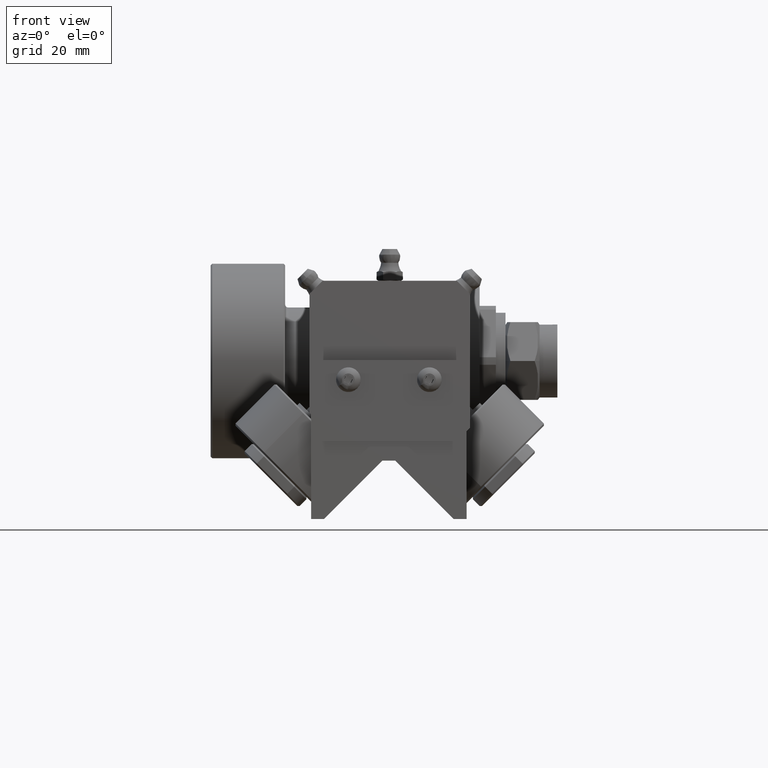
[diagram: clean part render]
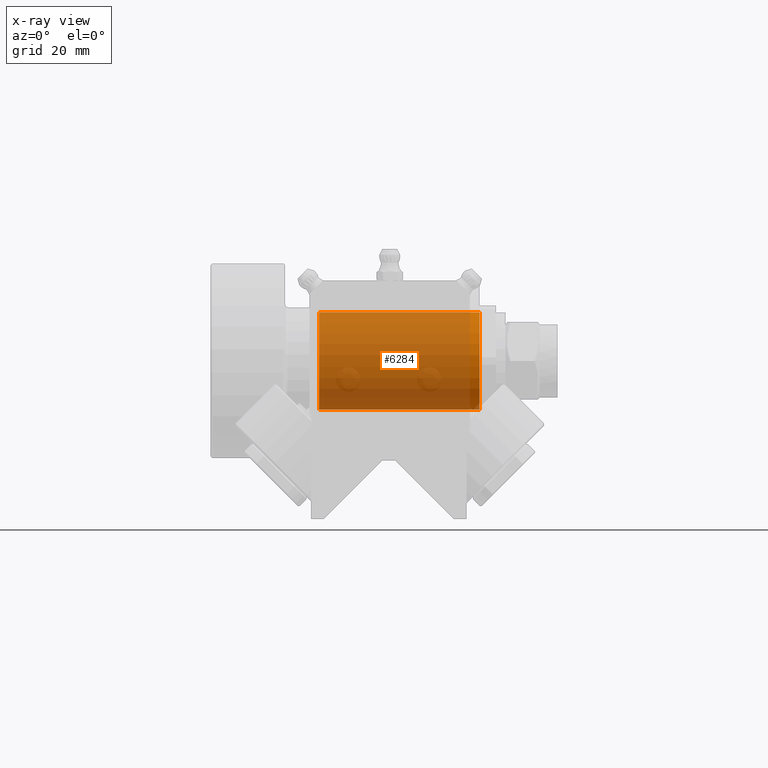
[diagram: x-ray — body ghosted, one internal face saturated and labeled with its STEP entity id]
A machine part, front view, then the same camera in x-ray: the body is ghosted and one INTERNAL B-rep face — a face not visible from any outside direction — is saturated and labeled: STEP entity #6284.
In plain terms, the highlighted cylindrical surface (bore or boss wall) has radius 15 mm, axis along (1, -0, -0).
Its self-contained STEP definition (entity closure, byte-faithful):
#851=FACE_OUTER_BOUND('',#1252,.T.);
#1252=EDGE_LOOP('',(#5301,#5302,#5303,#5304));
#1651=CIRCLE('',#7316,15.);
#1652=CIRCLE('',#7318,15.);
#2080=LINE('',#12611,#2449);
#2449=VECTOR('',#8747,15.);
#3021=VERTEX_POINT('',#12605);
#3022=VERTEX_POINT('',#12609);
#3820=EDGE_CURVE('',#3021,#3021,#1651,.T.);
#3821=EDGE_CURVE('',#3022,#3022,#1652,.T.);
#3822=EDGE_CURVE('',#3022,#3021,#2080,.T.);
#5301=ORIENTED_EDGE('',*,*,#3821,.F.);
#5302=ORIENTED_EDGE('',*,*,#3822,.T.);
#5303=ORIENTED_EDGE('',*,*,#3820,.F.);
#5304=ORIENTED_EDGE('',*,*,#3822,.F.);
#6049=CYLINDRICAL_SURFACE('',#7317,15.);
#6284=ADVANCED_FACE('',(#851),#6049,.T.);
#7316=AXIS2_PLACEMENT_3D('',#12607,#8741,#8742);
#7317=AXIS2_PLACEMENT_3D('',#12608,#8743,#8744);
#7318=AXIS2_PLACEMENT_3D('',#12610,#8745,#8746);
#8741=DIRECTION('center_axis',(-1.,0.,0.));
#8742=DIRECTION('ref_axis',(0.,-1.,0.));
#8743=DIRECTION('center_axis',(1.,0.,0.));
#8744=DIRECTION('ref_axis',(0.,-1.,0.));
#8745=DIRECTION('center_axis',(1.,0.,0.));
#8746=DIRECTION('ref_axis',(0.,-1.,0.));
#8747=DIRECTION('',(-1.,0.,0.));
#12605=CARTESIAN_POINT('',(-24.5,15.,-1.83697019872103E-15));
#12607=CARTESIAN_POINT('Origin',(-24.5,0.,0.));
#12608=CARTESIAN_POINT('Origin',(0.,0.,0.));
#12609=CARTESIAN_POINT('',(25.,15.,1.83697019872103E-15));
#12610=CARTESIAN_POINT('Origin',(25.,0.,0.));
#12611=CARTESIAN_POINT('',(0.,15.,1.83697019872103E-15));